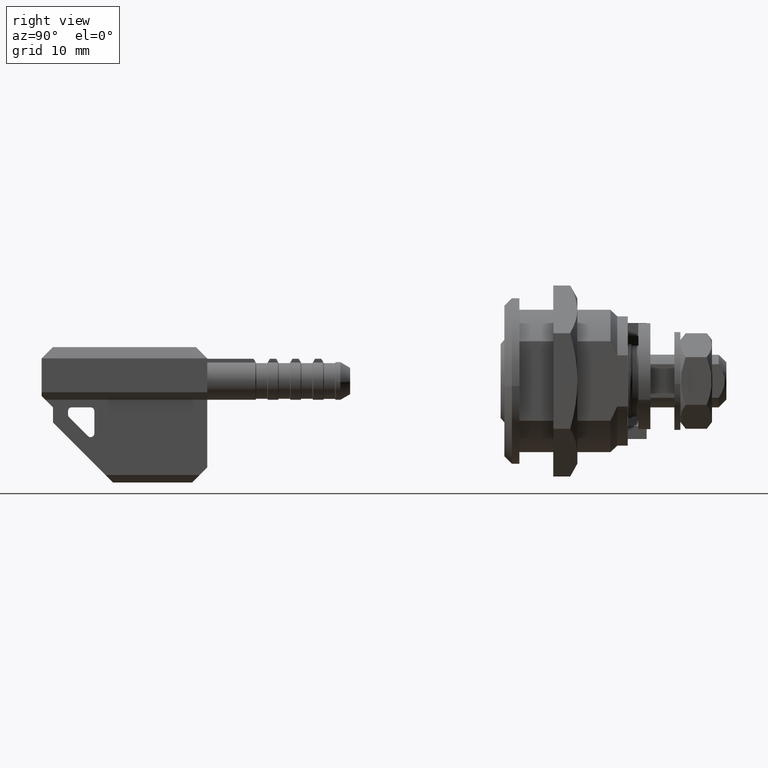
[diagram: clean part render]
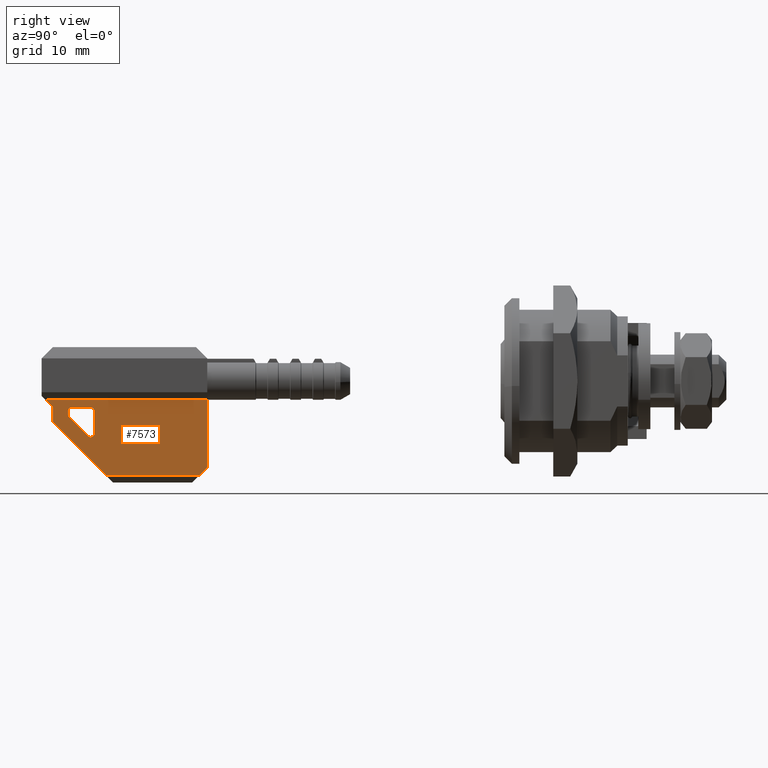
[diagram: same view with one face highlighted and labeled with its STEP entity id]
A machine part, right view. The second image highlights one B-rep face of the part: STEP entity #7573.
In plain terms, the highlighted face is a freeform B-spline surface patch.
Its self-contained STEP definition (entity closure, byte-faithful):
#7260=CARTESIAN_POINT('',(-42.500000000000000,-2.000000000000030,-12.500000000000000));
#7261=VERTEX_POINT('',#7260);
#7269=CARTESIAN_POINT('',(-55.0,-2.0,-12.500000000000000));
#7270=VERTEX_POINT('',#7269);
#7271=CARTESIAN_POINT('',(-55.0,-2.0,-12.500000000000000));
#7272=CARTESIAN_POINT('',(-42.500000000000000,-2.000000000000030,-12.500000000000000));
#7273=QUASI_UNIFORM_CURVE('',1,(#7271,#7272),.UNSPECIFIED.,.F.,.U.);
#7274=EDGE_CURVE('',#7270,#7261,#7273,.T.);
#7345=CARTESIAN_POINT('',(-41.500000000000000,-2.0,-11.500000000000000));
#7346=VERTEX_POINT('',#7345);
#7352=CARTESIAN_POINT('',(-42.500000000000000,-2.000000000000030,-12.500000000000000));
#7353=CARTESIAN_POINT('',(-41.500000000000000,-2.0,-11.500000000000000));
#7354=QUASI_UNIFORM_CURVE('',1,(#7352,#7353),.UNSPECIFIED.,.F.,.U.);
#7355=EDGE_CURVE('',#7261,#7346,#7354,.T.);
#7375=CARTESIAN_POINT('',(-63.0,-2.0,-2.499999999999901));
#7376=VERTEX_POINT('',#7375);
#7382=CARTESIAN_POINT('',(-41.500000000000000,-2.0,-2.499999999999901));
#7383=VERTEX_POINT('',#7382);
#7384=CARTESIAN_POINT('',(-63.0,-2.0,-2.499999999999901));
#7385=CARTESIAN_POINT('',(-41.500000000000000,-2.0,-2.499999999999901));
#7386=QUASI_UNIFORM_CURVE('',1,(#7384,#7385),.UNSPECIFIED.,.F.,.U.);
#7387=EDGE_CURVE('',#7376,#7383,#7386,.T.);
#7447=CARTESIAN_POINT('',(-64.073924958328831,-2.0,-12.999499980618070));
#7448=CARTESIAN_POINT('',(-40.426074464996233,-2.0,-12.999499980618070));
#7449=CARTESIAN_POINT('',(-64.073924958328831,-2.0,-2.000499751160935));
#7450=CARTESIAN_POINT('',(-40.426074464996233,-2.0,-2.000499751160935));
#7451=B_SPLINE_SURFACE_WITH_KNOTS('',1,1,((#7447,#7449),(#7448,#7450)),.UNSPECIFIED.,.F.,.F.,.U.,(2,2),(2,2),(0.0,23.647850493332601),(0.0,10.999000229457129),.UNSPECIFIED.);
#7452=CARTESIAN_POINT('',(-62.0,-2.0,-5.500000000000000));
#7453=VERTEX_POINT('',#7452);
#7454=CARTESIAN_POINT('',(-55.0,-2.0,-12.500000000000000));
#7455=CARTESIAN_POINT('',(-62.0,-2.0,-5.500000000000000));
#7456=QUASI_UNIFORM_CURVE('',1,(#7454,#7455),.UNSPECIFIED.,.F.,.U.);
#7457=EDGE_CURVE('',#7270,#7453,#7456,.T.);
#7458=ORIENTED_EDGE('',*,*,#7457,.F.);
#7459=ORIENTED_EDGE('',*,*,#7274,.T.);
#7460=ORIENTED_EDGE('',*,*,#7355,.T.);
#7461=CARTESIAN_POINT('',(-41.500000000000000,-2.0,-2.499999999999901));
#7462=CARTESIAN_POINT('',(-41.500000000000000,-2.0,-11.500000000000000));
#7463=QUASI_UNIFORM_CURVE('',1,(#7461,#7462),.UNSPECIFIED.,.F.,.U.);
#7464=EDGE_CURVE('',#7383,#7346,#7463,.T.);
#7465=ORIENTED_EDGE('',*,*,#7464,.F.);
#7466=ORIENTED_EDGE('',*,*,#7387,.F.);
#7467=CARTESIAN_POINT('',(-62.0,-2.0,-3.499999999999901));
#7468=VERTEX_POINT('',#7467);
#7469=CARTESIAN_POINT('',(-62.0,-2.0,-3.499999999999901));
#7470=CARTESIAN_POINT('',(-63.0,-2.0,-2.499999999999901));
#7471=QUASI_UNIFORM_CURVE('',1,(#7469,#7470),.UNSPECIFIED.,.F.,.U.);
#7472=EDGE_CURVE('',#7468,#7376,#7471,.T.);
#7473=ORIENTED_EDGE('',*,*,#7472,.F.);
#7474=CARTESIAN_POINT('',(-62.0,-2.0,-5.500000000000000));
#7475=CARTESIAN_POINT('',(-62.0,-2.0,-3.499999999999901));
#7476=QUASI_UNIFORM_CURVE('',1,(#7474,#7475),.UNSPECIFIED.,.F.,.U.);
#7477=EDGE_CURVE('',#7453,#7468,#7476,.T.);
#7478=ORIENTED_EDGE('',*,*,#7477,.F.);
#7479=EDGE_LOOP('',(#7458,#7459,#7460,#7465,#7466,#7473,#7478));
#7480=FACE_OUTER_BOUND('',#7479,.T.);
#7481=CARTESIAN_POINT('',(-56.500000000000000,-2.0,-3.999999999999901));
#7482=VERTEX_POINT('',#7481);
#7483=CARTESIAN_POINT('',(-57.0,-2.0,-3.499999999999901));
#7484=VERTEX_POINT('',#7483);
#7485=CARTESIAN_POINT('',(-56.500000000000000,-2.0,-3.999999999999901));
#7486=CARTESIAN_POINT('',(-56.500000000000000,-2.000000000000000,-3.499999999999901));
#7487=CARTESIAN_POINT('',(-57.0,-2.0,-3.499999999999901));
#7495=(BOUNDED_CURVE()B_SPLINE_CURVE(2,(#7485,#7486,#7487),.UNSPECIFIED.,.F.,.U.)CURVE()GEOMETRIC_REPRESENTATION_ITEM()QUASI_UNIFORM_CURVE()RATIONAL_B_SPLINE_CURVE((1.0,0.707106781186548,1.0))REPRESENTATION_ITEM(''));
#7496=EDGE_CURVE('',#7482,#7484,#7495,.T.);
#7497=ORIENTED_EDGE('',*,*,#7496,.F.);
#7498=CARTESIAN_POINT('',(-56.500000000000000,-2.0,-6.963999999999900));
#7499=VERTEX_POINT('',#7498);
#7500=CARTESIAN_POINT('',(-56.500000000000000,-2.0,-6.963999999999900));
#7501=CARTESIAN_POINT('',(-56.500000000000000,-2.0,-3.999999999999901));
#7502=QUASI_UNIFORM_CURVE('',1,(#7500,#7501),.UNSPECIFIED.,.F.,.U.);
#7503=EDGE_CURVE('',#7499,#7482,#7502,.T.);
#7504=ORIENTED_EDGE('',*,*,#7503,.F.);
#7505=CARTESIAN_POINT('',(-57.353499999999997,-2.0,-7.317999999999900));
#7506=VERTEX_POINT('',#7505);
#7507=CARTESIAN_POINT('',(-57.353500000000032,-2.0,-7.317999999999920));
#7508=CARTESIAN_POINT('',(-57.117158044296666,-2.0,-7.554341955703245));
#7509=CARTESIAN_POINT('',(-56.808422377253507,-2.0,-7.426289903994656));
#7510=CARTESIAN_POINT('',(-56.499686710210341,-2.0,-7.298237852286068));
#7511=CARTESIAN_POINT('',(-56.499999999999993,-2.0,-6.963999999999900));
#7519=(BOUNDED_CURVE()B_SPLINE_CURVE(2,(#7507,#7508,#7509,#7510,#7511),.UNSPECIFIED.,.F.,.U.)B_SPLINE_CURVE_WITH_KNOTS((3,2,3),(0.0,0.500000000000000,1.0),.UNSPECIFIED.)CURVE()GEOMETRIC_REPRESENTATION_ITEM()RATIONAL_B_SPLINE_CURVE((1.0,0.831339401923724,1.0,0.831339401923724,1.0))REPRESENTATION_ITEM(''));
#7520=EDGE_CURVE('',#7506,#7499,#7519,.T.);
#7521=ORIENTED_EDGE('',*,*,#7520,.F.);
#7522=CARTESIAN_POINT('',(-59.853499992549402,-2.0,-4.818000007450491));
#7523=VERTEX_POINT('',#7522);
#7524=CARTESIAN_POINT('',(-59.853499992549402,-2.0,-4.818000007450491));
#7525=CARTESIAN_POINT('',(-57.353499999999997,-2.0,-7.317999999999900));
#7526=QUASI_UNIFORM_CURVE('',1,(#7524,#7525),.UNSPECIFIED.,.F.,.U.);
#7527=EDGE_CURVE('',#7523,#7506,#7526,.T.);
#7528=ORIENTED_EDGE('',*,*,#7527,.F.);
#7529=CARTESIAN_POINT('',(-60.0,-2.0,-4.463999999999900));
#7530=VERTEX_POINT('',#7529);
#7531=CARTESIAN_POINT('',(-60.000000000000128,-2.0,-4.463999999999900));
#7532=CARTESIAN_POINT('',(-60.000131618385574,-2.000000000000000,-4.671368387792191));
#7533=CARTESIAN_POINT('',(-59.853499992549423,-2.0,-4.818000007450513));
#7541=(BOUNDED_CURVE()B_SPLINE_CURVE(2,(#7531,#7532,#7533),.UNSPECIFIED.,.F.,.U.)CURVE()GEOMETRIC_REPRESENTATION_ITEM()QUASI_UNIFORM_CURVE()RATIONAL_B_SPLINE_CURVE((1.0,0.923758035844264,1.0))REPRESENTATION_ITEM(''));
#7542=EDGE_CURVE('',#7530,#7523,#7541,.T.);
#7543=ORIENTED_EDGE('',*,*,#7542,.F.);
#7544=CARTESIAN_POINT('',(-60.0,-2.0,-3.999999999999901));
#7545=VERTEX_POINT('',#7544);
#7546=CARTESIAN_POINT('',(-60.0,-2.0,-3.999999999999901));
#7547=CARTESIAN_POINT('',(-60.0,-2.0,-4.463999999999900));
#7548=QUASI_UNIFORM_CURVE('',1,(#7546,#7547),.UNSPECIFIED.,.F.,.U.);
#7549=EDGE_CURVE('',#7545,#7530,#7548,.T.);
#7550=ORIENTED_EDGE('',*,*,#7549,.F.);
#7551=CARTESIAN_POINT('',(-59.500000000000000,-2.0,-3.499999999999901));
#7552=VERTEX_POINT('',#7551);
#7553=CARTESIAN_POINT('',(-59.500000000000000,-2.0,-3.499999999999901));
#7554=CARTESIAN_POINT('',(-60.0,-2.000000000000000,-3.499999999999901));
#7555=CARTESIAN_POINT('',(-60.0,-2.0,-3.999999999999901));
#7563=(BOUNDED_CURVE()B_SPLINE_CURVE(2,(#7553,#7554,#7555),.UNSPECIFIED.,.F.,.U.)CURVE()GEOMETRIC_REPRESENTATION_ITEM()QUASI_UNIFORM_CURVE()RATIONAL_B_SPLINE_CURVE((1.0,0.707106781186548,1.0))REPRESENTATION_ITEM(''));
#7564=EDGE_CURVE('',#7552,#7545,#7563,.T.);
#7565=ORIENTED_EDGE('',*,*,#7564,.F.);
#7566=CARTESIAN_POINT('',(-57.0,-2.0,-3.499999999999901));
#7567=CARTESIAN_POINT('',(-59.500000000000000,-2.0,-3.499999999999901));
#7568=QUASI_UNIFORM_CURVE('',1,(#7566,#7567),.UNSPECIFIED.,.F.,.U.);
#7569=EDGE_CURVE('',#7484,#7552,#7568,.T.);
#7570=ORIENTED_EDGE('',*,*,#7569,.F.);
#7571=EDGE_LOOP('',(#7497,#7504,#7521,#7528,#7543,#7550,#7565,#7570));
#7572=FACE_BOUND('',#7571,.T.);
#7573=ADVANCED_FACE('',(#7480,#7572),#7451,.T.);